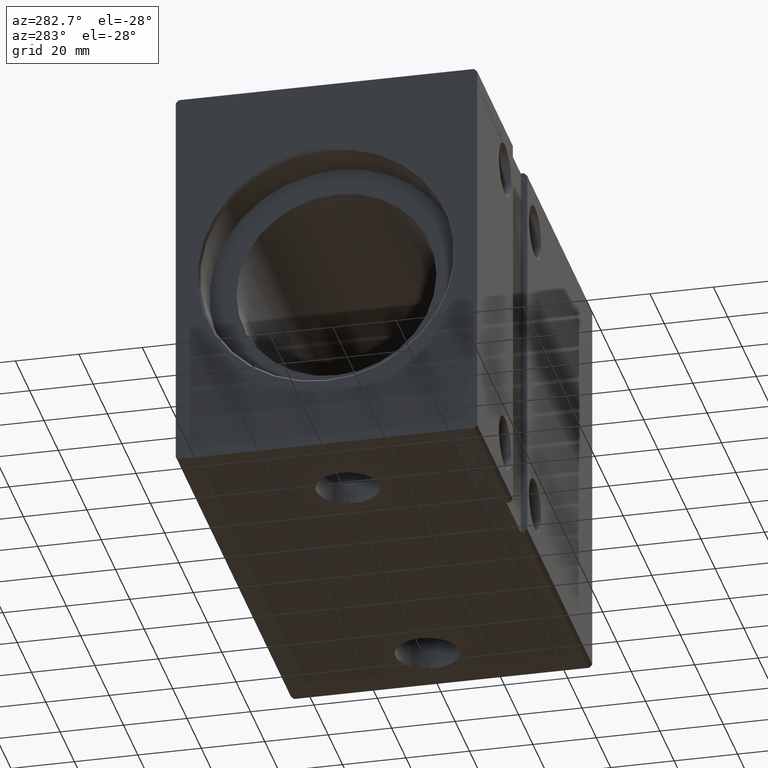
[diagram: clean part render]
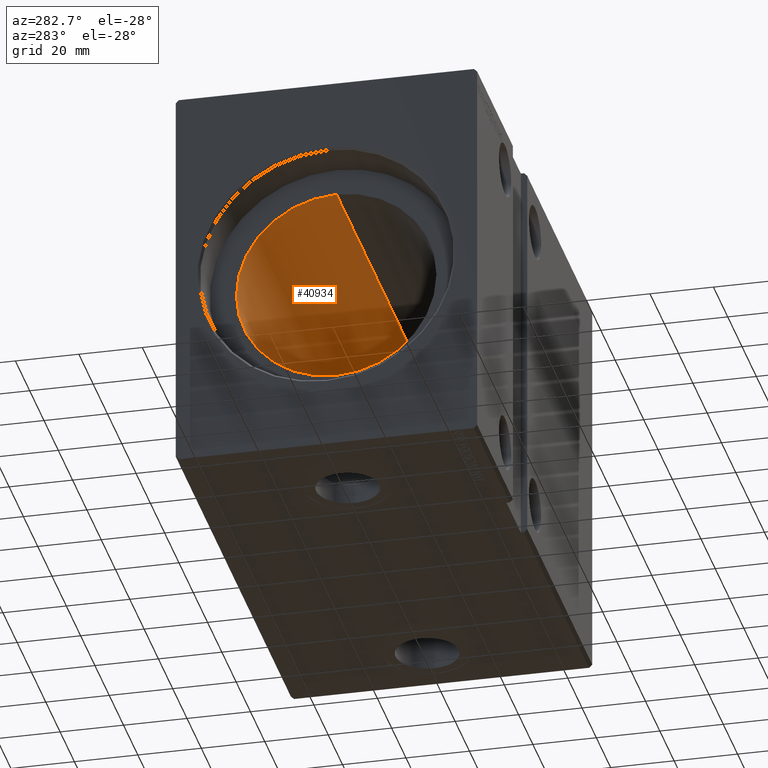
[diagram: same view with one face highlighted and labeled with its STEP entity id]
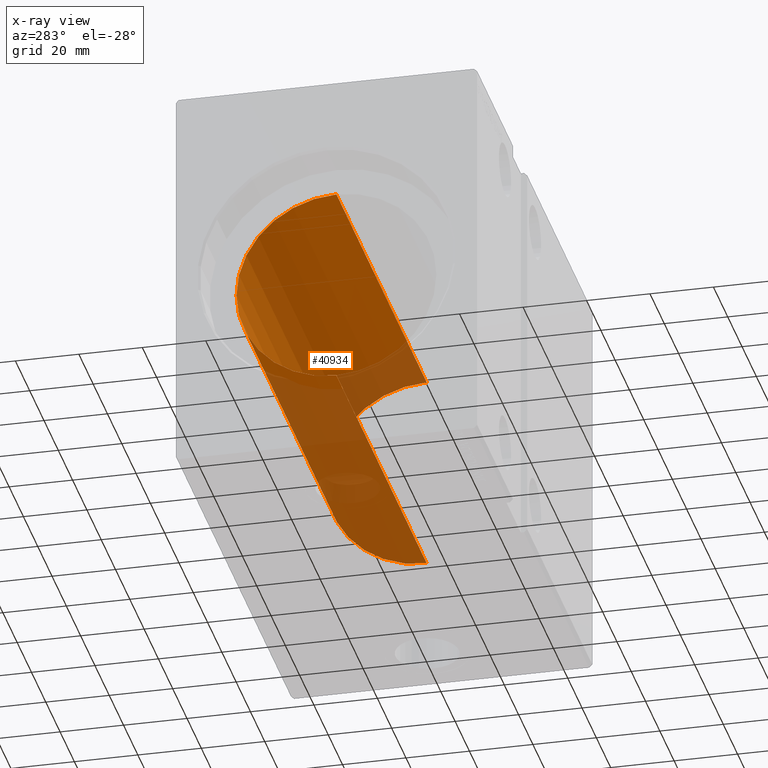
[diagram: x-ray of the same camera — body ghosted, the highlighted face saturated]
A machine part, auxiliary view. The second image highlights one B-rep face of the part: STEP entity #40934.
The next image is the same camera in x-ray: the body ghosted, the highlighted face saturated — about 41% of this face is hidden behind the body in this view.
In plain terms, the highlighted cylindrical surface (partial cylindrical patch) has radius 31.5 mm, axis along (-1, -0, -0).
Its self-contained STEP definition (entity closure, byte-faithful):
#533 = EDGE_CURVE ( 'NONE', #30874, #11149, #20739, .T. ) ;
#2315 = VECTOR ( 'NONE', #32116, 1000.000000000000000 ) ;
#2873 = CARTESIAN_POINT ( 'NONE',  ( 140.1999999999999886, 3.857637417314162689E-15, -31.50000000000000000 ) ) ;
#3111 = LINE ( 'NONE', #6098, #2315 ) ;
#4544 = CIRCLE ( 'NONE', #11360, 31.50000000000000000 ) ;
#5171 = ORIENTED_EDGE ( 'NONE', *, *, #35905, .F. ) ;
#6098 = CARTESIAN_POINT ( 'NONE',  ( 140.1999999999999886, 3.857637417314162689E-15, -31.50000000000000000 ) ) ;
#6111 = CARTESIAN_POINT ( 'NONE',  ( 140.1999999999999886, 0.000000000000000000, 0.000000000000000000 ) ) ;
#8410 = EDGE_CURVE ( 'NONE', #26517, #30874, #37145, .T. ) ;
#8871 = DIRECTION ( 'NONE',  ( -1.000000000000000000, 0.000000000000000000, 0.000000000000000000 ) ) ;
#11149 = VERTEX_POINT ( 'NONE', #28047 ) ;
#11360 = AXIS2_PLACEMENT_3D ( 'NONE', #6111, #8871, #25290 ) ;
#14818 = DIRECTION ( 'NONE',  ( -1.000000000000000000, 0.000000000000000000, 0.000000000000000000 ) ) ;
#15773 = ORIENTED_EDGE ( 'NONE', *, *, #39014, .F. ) ;
#15912 = CYLINDRICAL_SURFACE ( 'NONE', #22393, 31.50000000000000000 ) ;
#17290 = DIRECTION ( 'NONE',  ( -1.000000000000000000, -0.000000000000000000, -0.000000000000000000 ) ) ;
#18462 = FACE_OUTER_BOUND ( 'NONE', #29348, .T. ) ;
#18888 = DIRECTION ( 'NONE',  ( -1.000000000000000000, -0.000000000000000000, -0.000000000000000000 ) ) ;
#20217 = VECTOR ( 'NONE', #17290, 1000.000000000000000 ) ;
#20739 = CIRCLE ( 'NONE', #28909, 31.50000000000000000 ) ;
#20910 = CARTESIAN_POINT ( 'NONE',  ( 140.1999999999999886, 0.000000000000000000, 31.50000000000000000 ) ) ;
#21649 = VERTEX_POINT ( 'NONE', #2873 ) ;
#22393 = AXIS2_PLACEMENT_3D ( 'NONE', #37897, #18888, #28923 ) ;
#23854 = CARTESIAN_POINT ( 'NONE',  ( 140.1999999999999886, 0.000000000000000000, 31.50000000000000000 ) ) ;
#23999 = CARTESIAN_POINT ( 'NONE',  ( 14.00000000000001243, 0.000000000000000000, 0.000000000000000000 ) ) ;
#24377 = ORIENTED_EDGE ( 'NONE', *, *, #533, .T. ) ;
#24795 = ORIENTED_EDGE ( 'NONE', *, *, #8410, .T. ) ;
#25290 = DIRECTION ( 'NONE',  ( 0.000000000000000000, 0.000000000000000000, 1.000000000000000000 ) ) ;
#26517 = VERTEX_POINT ( 'NONE', #23854 ) ;
#28047 = CARTESIAN_POINT ( 'NONE',  ( 14.00000000000001243, 3.857637417314162689E-15, -31.50000000000000000 ) ) ;
#28909 = AXIS2_PLACEMENT_3D ( 'NONE', #23999, #14818, #33618 ) ;
#28923 = DIRECTION ( 'NONE',  ( 0.000000000000000000, 0.000000000000000000, 1.000000000000000000 ) ) ;
#29348 = EDGE_LOOP ( 'NONE', ( #5171, #15773, #24795, #24377 ) ) ;
#30874 = VERTEX_POINT ( 'NONE', #33701 ) ;
#32116 = DIRECTION ( 'NONE',  ( -1.000000000000000000, -0.000000000000000000, -0.000000000000000000 ) ) ;
#33618 = DIRECTION ( 'NONE',  ( 0.000000000000000000, 0.000000000000000000, 1.000000000000000000 ) ) ;
#33701 = CARTESIAN_POINT ( 'NONE',  ( 14.00000000000001243, 0.000000000000000000, 31.50000000000000000 ) ) ;
#35905 = EDGE_CURVE ( 'NONE', #21649, #11149, #3111, .T. ) ;
#37145 = LINE ( 'NONE', #20910, #20217 ) ;
#37897 = CARTESIAN_POINT ( 'NONE',  ( 140.1999999999999886, 0.000000000000000000, 0.000000000000000000 ) ) ;
#39014 = EDGE_CURVE ( 'NONE', #26517, #21649, #4544, .T. ) ;
#40934 = ADVANCED_FACE ( 'NONE', ( #18462 ), #15912, .F. ) ;